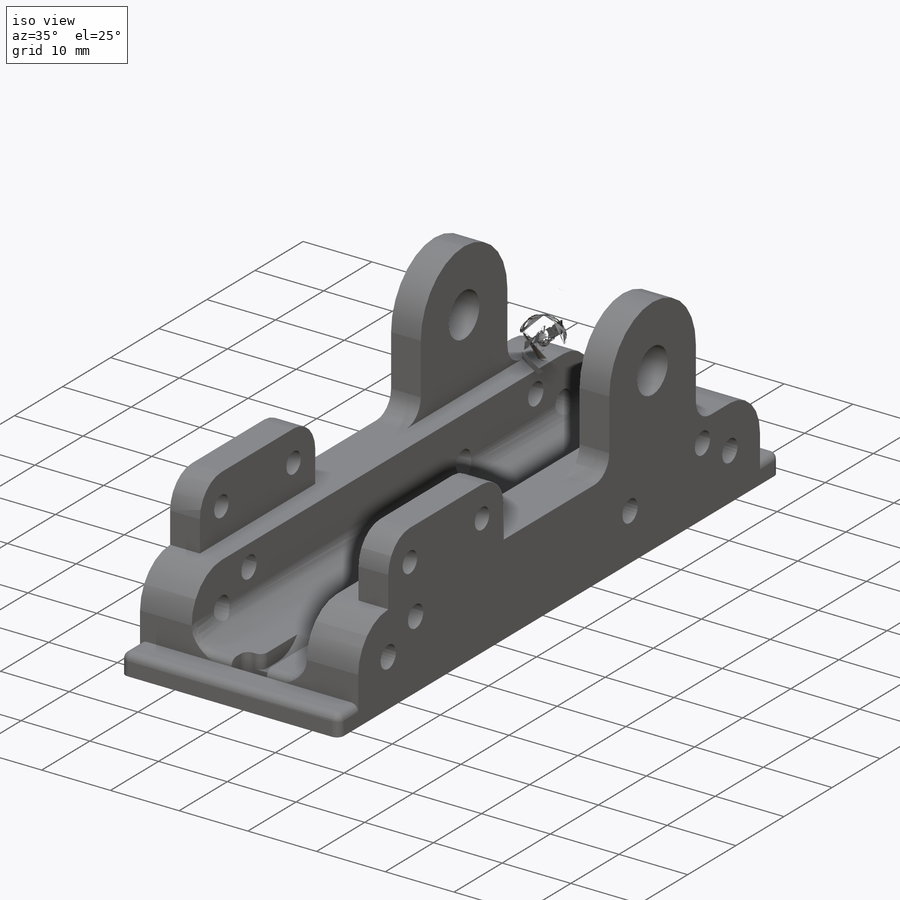
[diagram: iso view]
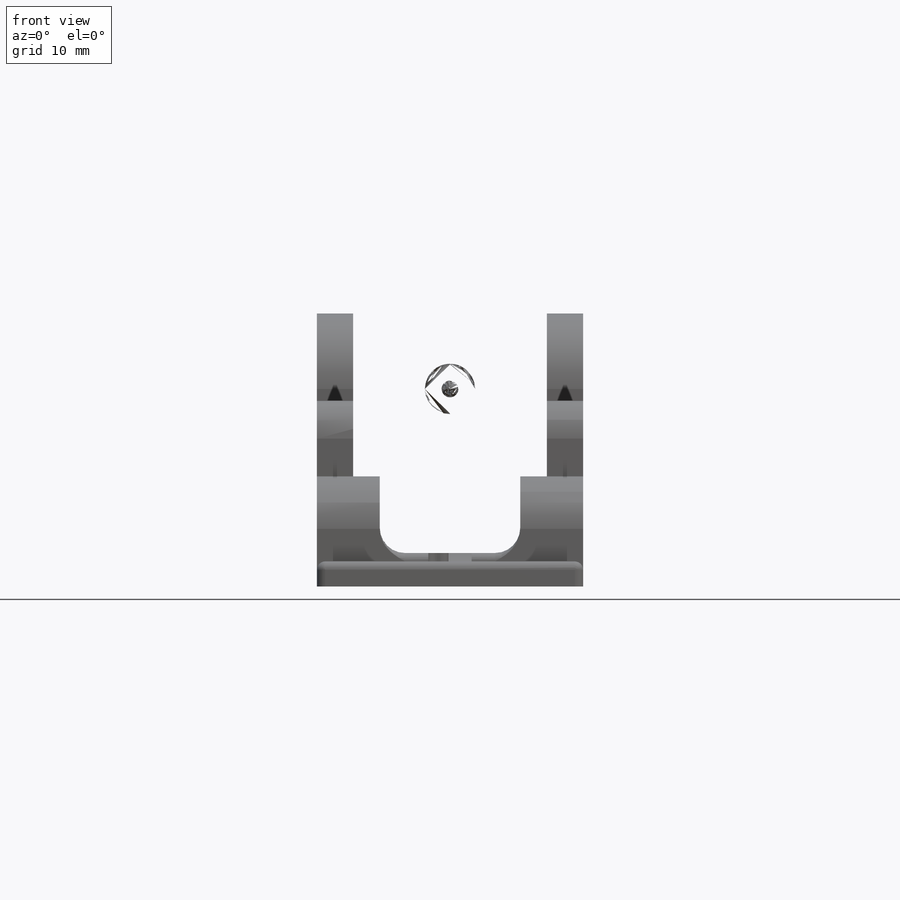
[diagram: front view]
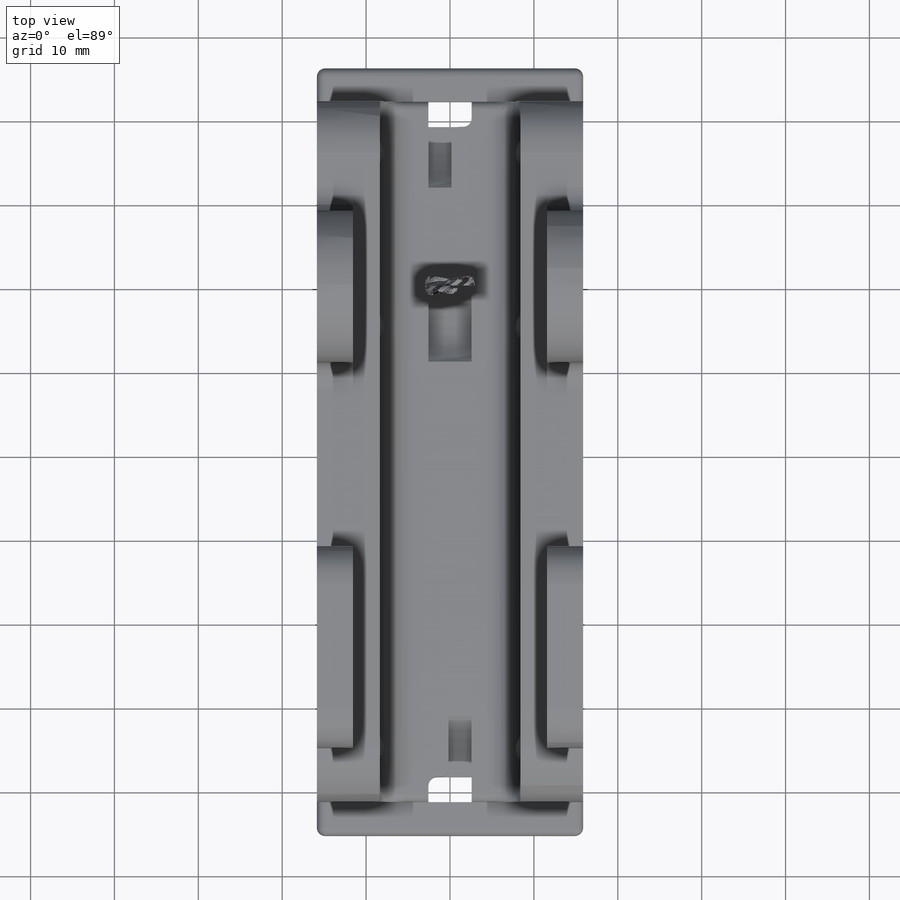
[diagram: top view]
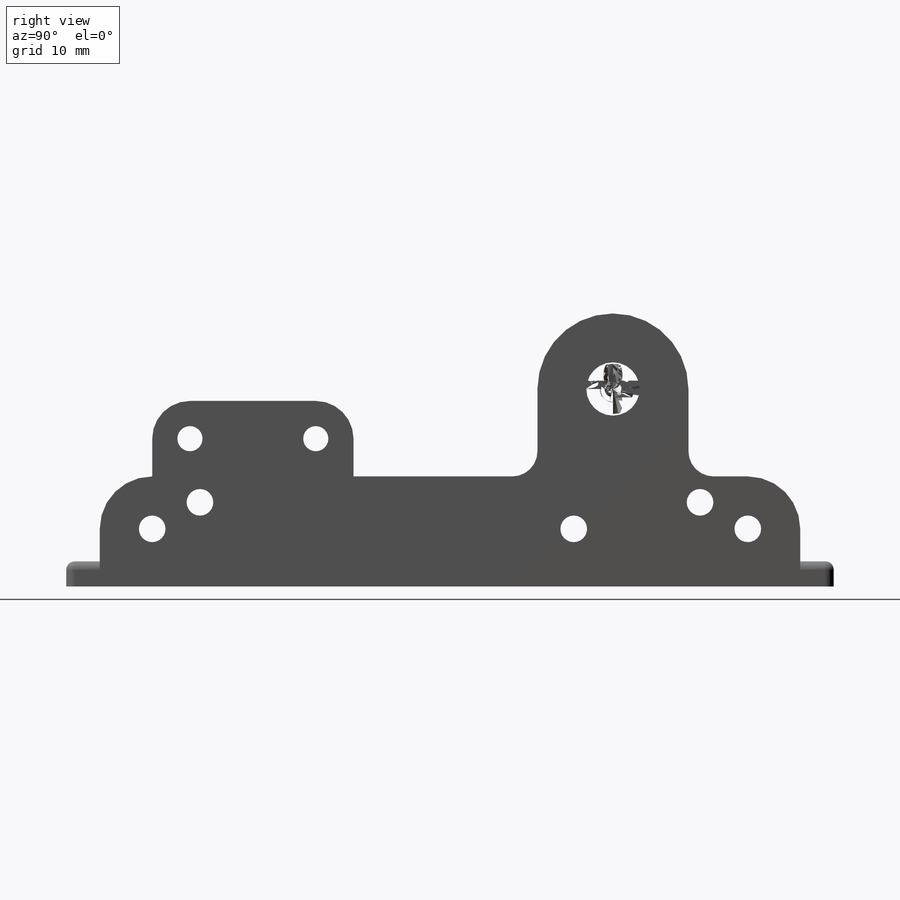
[diagram: right view]
SOLIDWORKS PART (.sldprt)
format: sldprt  version: not decoded by parser v0  size: 679,424 bytes
history: native  units: mm
features: sketch x11, extrude x5, cut_extrude x4, fillet x3, material x1 + 2 further entries (+22 scaffold rows collapsed; 6 parser-record rows omitted)
feature tree (54):
  scaffold x22  (default folders/planes/origin — collapsed)
  material  "ABS"
  sketch  "values-params_print"  dims[width destroy=0.7mm width keep=3.0mm width tab=4.0mm base diameter=100.0mm print fit=0.15mm print free=0.35mm anchor diameter=3.0mm pin diameter=3.175mm pulley diameter=9.5mm pulley thickness=2.4mm base pin diameter=6.35mm]
  "params_print"
  parser-record x6  (decoder bookkeeping rows leaked as tree rows — omitted from the tree; the rows remain in map.json)
  sketch  "values-params_finger_t42"  dims[Lp=62.5mm Ld=37.5mm Kp=2.8mm Kd=~3.800185mm Kp Length=10.0mm Kd Length=10.0mm Rp=8.0mm Rd=8.0mm height=18.0mm depth=31.75mm Lb=77.5mm Lb Pivot=60.0mm pad thickness=4.5mm Tp=15.0mm Td=15.0mm L=100.0mm base depth=44.45mm D1=~26.004508mm]
  "params_finger_t42"
  sketch  "Sketch3"  dims[c1.D1=6.35mm c1.D2=18.0mm c1.D5=~12.333789mm c1.D6=3.175mm c1.D3=6.35mm c1.D11=3.0mm c1.D13=3.0mm c1.D8=3.175mm c1.D14=6.35mm c1.D16=9.5mm c2.D3=3.7mm c2.D4=9.35mm c2.D5=4.5mm c2.D7=38.75mm c2.D8=30.9mm c3.D7=77.5mm c3.D3=5.2mm c3.D8=7.7625mm c3.D9=55.0mm c3.D10=3.0mm c4.D8=7.7625mm c4.D12=15.0mm c4.D13=3.0mm c5.D8=1.5875mm c5.D14=3.7mm c5.D15=3.0mm c5.D9=19.425mm c6.D15=1.5mm c6.D7=80.5mm]
  extrude  "Main Body"  Depth=31.75mm
  sketch  "Sketch16"  dims[D1=4.0mm D2=3.0mm]
  extrude  "Base Tabs"  [1 undecoded]
  sketch  "Sketch5"  dims[D1=16.75mm]
  cut_extrude  "Clearance - Middle"  [1 undecoded]
  sketch  "Sketch17"  dims[c1.D1=3.0mm c1.D2=5.15mm c2.D1=0.0mm]
  extrude  "Base Bottom"  Depth=4mm
  sketch  "Sketch7"  dims[D1=4.325mm]
  cut_extrude  "Print Clearance - Finger"  [1 undecoded]
  sketch  "Sketch8"  dims[D1=9.85mm]
  cut_extrude  "Clearance - Pulleys"  [1 undecoded]
  sketch  "Sketch9"  dims[D1=0.0mm]
  extrude  "Block - Pulley 1"  Depth=2.75mm
  sketch  "Sketch10"  dims[D1=0.0mm]
  extrude  "Block - Pulley 2"  Depth=2.75mm
  sketch  "Sketch15"  dims[c1.D1=~4.433612mm c1.D2=~6.559155mm c1.D3=9.85mm c2.D1=0.7mm c2.D2=1.5mm c2.D4=1.5mm]
  cut_extrude  "Clearance - Tendon Trap Pins"  [1 undecoded]
  fillet  "Contouring"  Radius=1mm
  fillet  "Inner Contouring"  Radius=3mm
  fillet  "Outer Contouring"  Radius=3mm
decode coverage: 18 of 23 modeling features carry decoded parameters; 2 rows unclassified (native names shown)
note: ~ marks probable driven/reference dimensions
note: 5 parameter values undecoded
summary: no parameter record found for 5 features
note: suppression state not decoded; provenance and decode notes live in map.json
